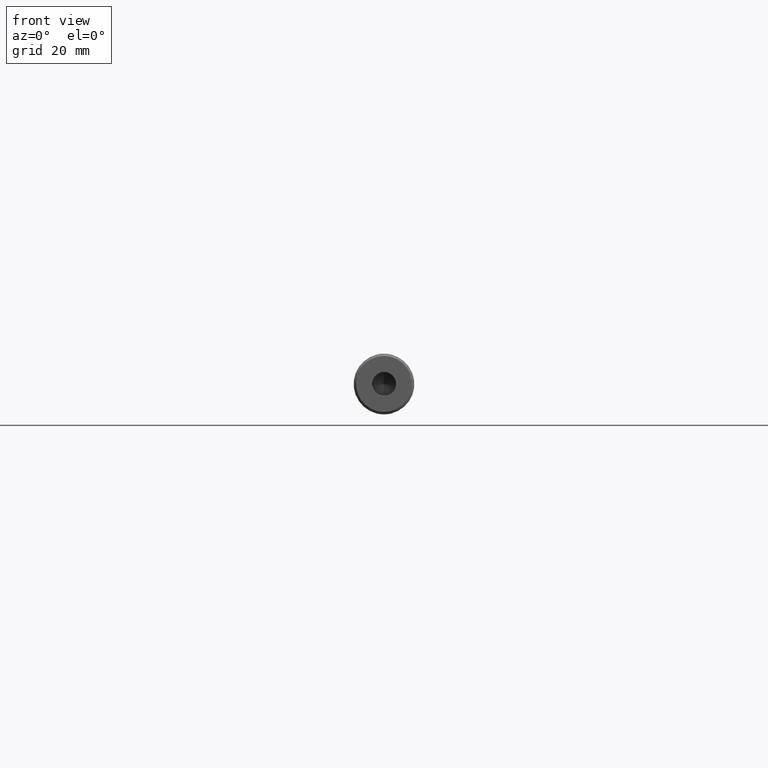
[diagram: clean part render]
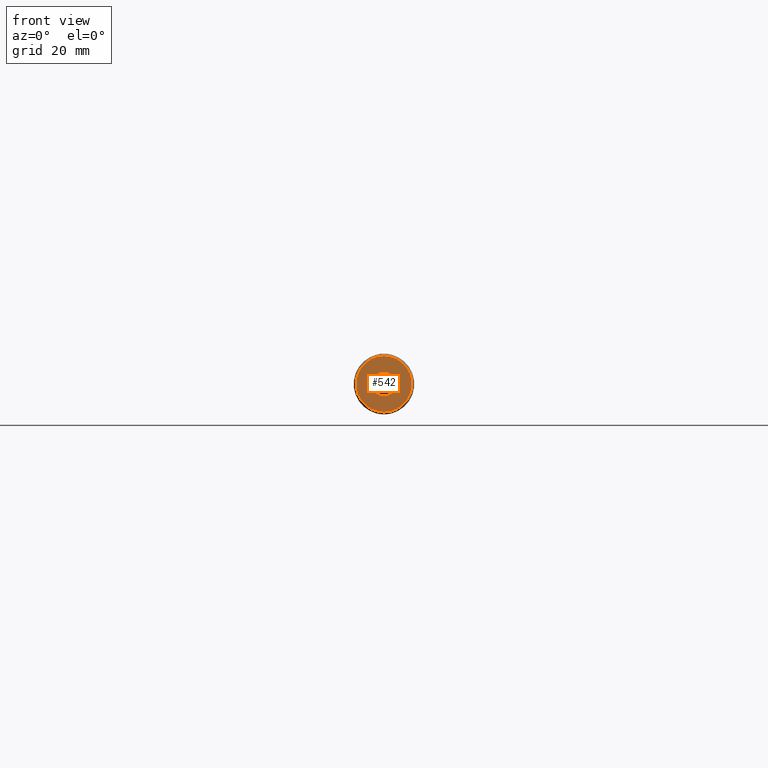
[diagram: same view with one face highlighted and labeled with its STEP entity id]
A machine part, front view. The second image highlights one B-rep face of the part: STEP entity #542.
In plain terms, the highlighted planar face has unit normal (0, 1, 0).
Its self-contained STEP definition (entity closure, byte-faithful):
#7 = VERTEX_POINT ( 'NONE', #246 ) ;
#9 = CIRCLE ( 'NONE', #486, 2.499999999999998200 ) ;
#17 = PLANE ( 'NONE',  #172 ) ;
#31 = CARTESIAN_POINT ( 'NONE',  ( 0.0000000000000000000, 0.0000000000000000000, 0.0000000000000000000 ) ) ;
#45 = ORIENTED_EDGE ( 'NONE', *, *, #230, .F. ) ;
#51 = VERTEX_POINT ( 'NONE', #311 ) ;
#80 = DIRECTION ( 'NONE',  ( -0.0000000000000000000, 1.000000000000000000, 0.0000000000000000000 ) ) ;
#97 = AXIS2_PLACEMENT_3D ( 'NONE', #750, #502, #510 ) ;
#107 = AXIS2_PLACEMENT_3D ( 'NONE', #31, #80, #270 ) ;
#110 = DIRECTION ( 'NONE',  ( 0.0000000000000000000, 0.0000000000000000000, 1.000000000000000000 ) ) ;
#172 = AXIS2_PLACEMENT_3D ( 'NONE', #569, #199, #690 ) ;
#199 = DIRECTION ( 'NONE',  ( 0.0000000000000000000, 1.000000000000000000, 0.0000000000000000000 ) ) ;
#230 = EDGE_CURVE ( 'NONE', #695, #282, #9, .T. ) ;
#246 = CARTESIAN_POINT ( 'NONE',  ( 7.470345474810422000E-016, 0.0000000000000000000, -5.850000000009458700 ) ) ;
#261 = EDGE_LOOP ( 'NONE', ( #45, #612 ) ) ;
#270 = DIRECTION ( 'NONE',  ( 0.0000000000000000000, 0.0000000000000000000, 1.000000000000000000 ) ) ;
#282 = VERTEX_POINT ( 'NONE', #341 ) ;
#311 = CARTESIAN_POINT ( 'NONE',  ( 0.0000000000000000000, 0.0000000000000000000, 5.850000000009458700 ) ) ;
#327 = DIRECTION ( 'NONE',  ( -0.0000000000000000000, -1.000000000000000000, -0.0000000000000000000 ) ) ;
#330 = CIRCLE ( 'NONE', #97, 2.499999999999998200 ) ;
#341 = CARTESIAN_POINT ( 'NONE',  ( 3.061616997868381200E-016, 1.040949779275261000E-016, 2.499999999999998200 ) ) ;
#358 = FACE_BOUND ( 'NONE', #261, .T. ) ;
#386 = EDGE_LOOP ( 'NONE', ( #617, #476 ) ) ;
#450 = CARTESIAN_POINT ( 'NONE',  ( 0.0000000000000000000, 1.040949779275261000E-016, -2.499999999999998200 ) ) ;
#462 = EDGE_CURVE ( 'NONE', #282, #695, #330, .T. ) ;
#476 = ORIENTED_EDGE ( 'NONE', *, *, #616, .F. ) ;
#480 = AXIS2_PLACEMENT_3D ( 'NONE', #726, #794, #110 ) ;
#486 = AXIS2_PLACEMENT_3D ( 'NONE', #639, #327, #766 ) ;
#502 = DIRECTION ( 'NONE',  ( -0.0000000000000000000, -1.000000000000000000, -0.0000000000000000000 ) ) ;
#510 = DIRECTION ( 'NONE',  ( 0.0000000000000000000, 0.0000000000000000000, -1.000000000000000000 ) ) ;
#527 = FACE_OUTER_BOUND ( 'NONE', #386, .T. ) ;
#542 = ADVANCED_FACE ( 'NONE', ( #358, #527 ), #17, .F. ) ;
#569 = CARTESIAN_POINT ( 'NONE',  ( 0.0000000000000000000, 0.0000000000000000000, 0.0000000000000000000 ) ) ;
#612 = ORIENTED_EDGE ( 'NONE', *, *, #462, .F. ) ;
#616 = EDGE_CURVE ( 'NONE', #7, #51, #632, .T. ) ;
#617 = ORIENTED_EDGE ( 'NONE', *, *, #737, .F. ) ;
#632 = CIRCLE ( 'NONE', #107, 5.850000000009458700 ) ;
#639 = CARTESIAN_POINT ( 'NONE',  ( 0.0000000000000000000, 1.040949779275261000E-016, 0.0000000000000000000 ) ) ;
#690 = DIRECTION ( 'NONE',  ( 0.0000000000000000000, -0.0000000000000000000, 1.000000000000000000 ) ) ;
#695 = VERTEX_POINT ( 'NONE', #450 ) ;
#699 = CIRCLE ( 'NONE', #480, 5.850000000009458700 ) ;
#726 = CARTESIAN_POINT ( 'NONE',  ( 0.0000000000000000000, 0.0000000000000000000, 0.0000000000000000000 ) ) ;
#737 = EDGE_CURVE ( 'NONE', #51, #7, #699, .T. ) ;
#750 = CARTESIAN_POINT ( 'NONE',  ( 0.0000000000000000000, 1.040949779275261000E-016, 0.0000000000000000000 ) ) ;
#766 = DIRECTION ( 'NONE',  ( 0.0000000000000000000, 0.0000000000000000000, -1.000000000000000000 ) ) ;
#794 = DIRECTION ( 'NONE',  ( -0.0000000000000000000, 1.000000000000000000, 0.0000000000000000000 ) ) ;